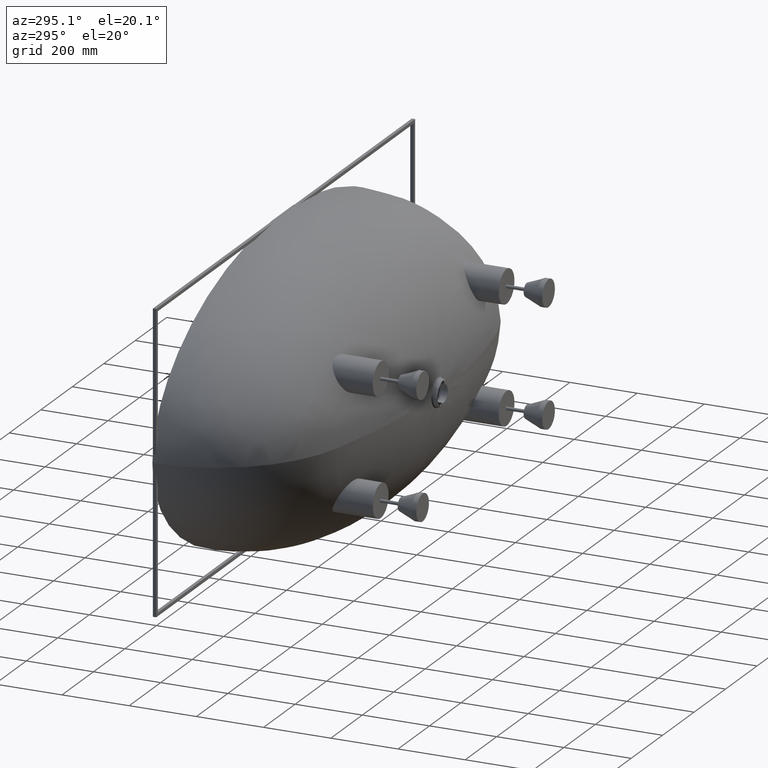
[diagram: clean part render]
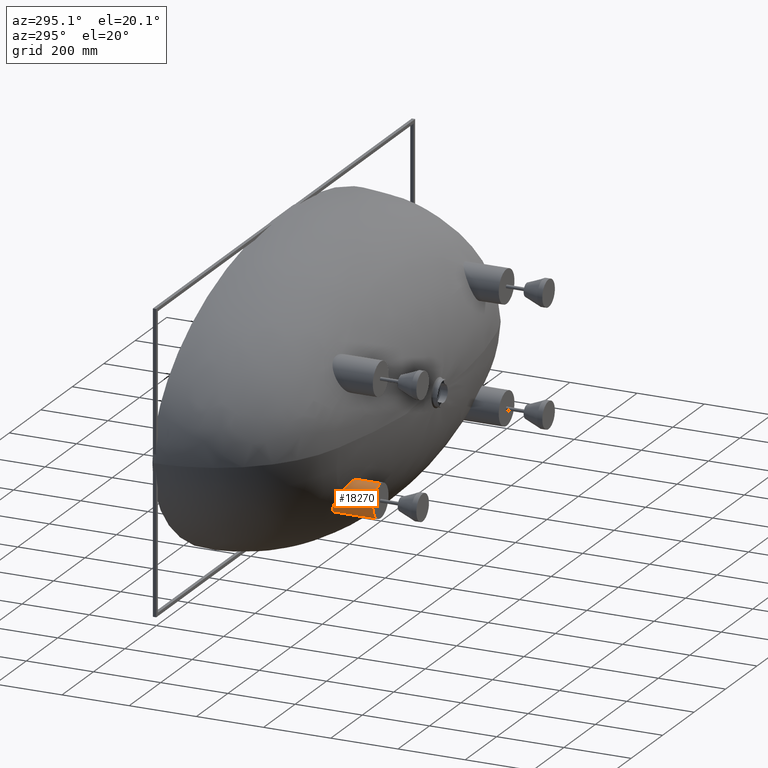
[diagram: same view with one face highlighted and labeled with its STEP entity id]
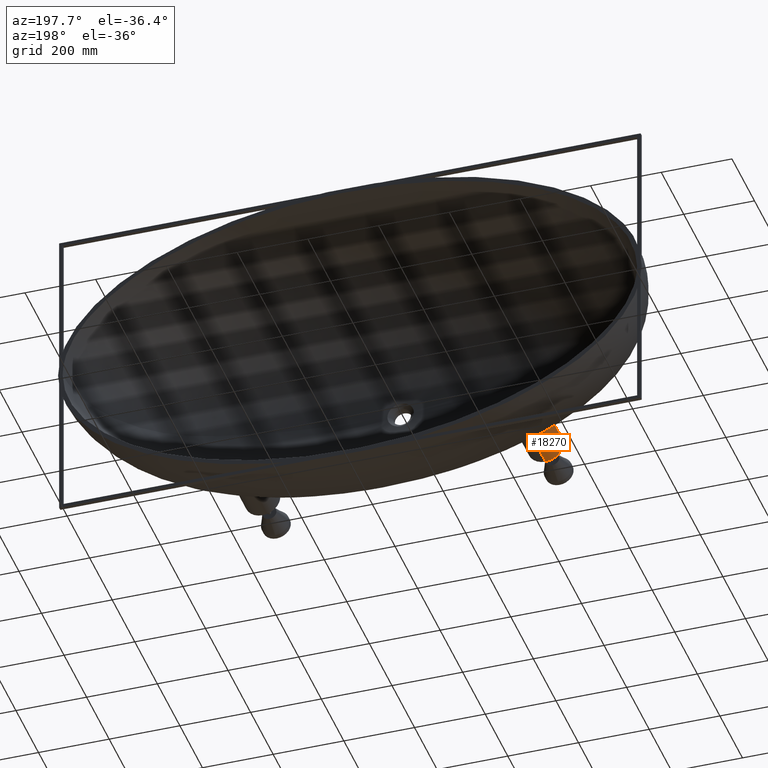
[diagram: same view with one face highlighted and labeled with its STEP entity id]
A machine part, auxiliary view. The second image highlights one B-rep face of the part: STEP entity #18270.
A second angle (auxiliary view) of the same face is appended — the face is thin or edge-on in the first view.
In plain terms, the highlighted cylindrical surface (edge-blend (fillet) strip) has radius 50 mm, axis along (-0, -1, -0).
Its self-contained STEP definition (entity closure, byte-faithful):
#553 = EDGE_CURVE ( 'NONE', #2644, #13024, #7185, .T. ) ;
#674 = AXIS2_PLACEMENT_3D ( 'NONE', #4965, #4788, #18412 ) ;
#2594 = EDGE_CURVE ( 'NONE', #2644, #5080, #8498, .T. ) ;
#2644 = VERTEX_POINT ( 'NONE', #3575 ) ;
#3140 = DIRECTION ( 'NONE',  ( 0.0000000000000000000, 1.000000000000000000, 0.0000000000000000000 ) ) ;
#3575 = CARTESIAN_POINT ( 'NONE',  ( -399.9999999999879500, -404.7099913692913400, -125.0000000000001700 ) ) ;
#3607 = FACE_OUTER_BOUND ( 'NONE', #15200, .T. ) ;
#3818 = CARTESIAN_POINT ( 'NONE',  ( -400.0000000000000000, -353.4300241764696000, -225.0000000000000900 ) ) ;
#4116 = CARTESIAN_POINT ( 'NONE',  ( -400.4269561940901100, -353.3100555326082000, -225.0000000000000900 ) ) ;
#4200 = CARTESIAN_POINT ( 'NONE',  ( -400.8565451386315300, -353.1928133813205500, -224.9945030136292400 ) ) ;
#4283 = CARTESIAN_POINT ( 'NONE',  ( -401.7141687293549800, -352.9658088401041000, -224.9724486764616500 ) ) ;
#4295 = CIRCLE ( 'NONE', #11215, 50.00000000000007100 ) ;
#4620 = CARTESIAN_POINT ( 'NONE',  ( -402.1433432012290200, -352.8557261548541000, -224.9558913499291200 ) ) ;
#4709 = CARTESIAN_POINT ( 'NONE',  ( -403.4319847412437500, -352.5359125772091000, -224.8894927145238400 ) ) ;
#4788 = DIRECTION ( 'NONE',  ( -0.0000000000000000000, -1.000000000000000000, -0.0000000000000000000 ) ) ;
#4804 = CARTESIAN_POINT ( 'NONE',  ( -404.2925693879360600, -352.3366093522678900, -224.8229380435985800 ) ) ;
#4895 = CARTESIAN_POINT ( 'NONE',  ( -406.8790530633772300, -351.7820555264638100, -224.5548570569760000 ) ) ;
#4965 = CARTESIAN_POINT ( 'NONE',  ( -399.9999999999999400, 500000.0000000000600, -175.0000000000000000 ) ) ;
#4981 = CARTESIAN_POINT ( 'NONE',  ( -408.6166419663362000, -351.4695779896289300, -224.2828718432774900 ) ) ;
#5066 = CARTESIAN_POINT ( 'NONE',  ( -413.7412943421390400, -350.7349867737845000, -223.2013353901156700 ) ) ;
#5080 = VERTEX_POINT ( 'NONE', #10640 ) ;
#5156 = CARTESIAN_POINT ( 'NONE',  ( -417.0710624575656900, -350.5058104820719200, -222.1290297338233300 ) ) ;
#5236 = CARTESIAN_POINT ( 'NONE',  ( -421.1201886488780100, -350.5640725773483800, -220.3290529903661900 ) ) ;
#5321 = CARTESIAN_POINT ( 'NONE',  ( -421.9251233311265400, -350.5933054444686800, -219.9451603265330000 ) ) ;
#5351 = CARTESIAN_POINT ( 'NONE',  ( -423.4972008498126600, -350.6853068735252400, -219.1436294620913800 ) ) ;
#5407 = CARTESIAN_POINT ( 'NONE',  ( -424.2677242493365400, -350.7480600746116000, -218.7245825935307600 ) ) ;
#5440 = CARTESIAN_POINT ( 'NONE',  ( -426.5342994645377500, -350.9846140361441400, -217.4143514014713800 ) ) ;
#5490 = CARTESIAN_POINT ( 'NONE',  ( -439.3576962092934700, -388.1361153565841300, -144.1519916381066900 ) ) ;
#5524 = CARTESIAN_POINT ( 'NONE',  ( -427.9854800715406200, -351.2066043629634500, -216.4702297280376500 ) ) ;
#5580 = VERTEX_POINT ( 'NONE', #10280 ) ;
#5598 = CARTESIAN_POINT ( 'NONE',  ( -430.7730634783301900, -351.7715397669430800, -214.4459834798103700 ) ) ;
#5769 = CARTESIAN_POINT ( 'NONE',  ( -432.1094530457406200, -352.1145005052566700, -213.3658436656703000 ) ) ;
#5845 = CARTESIAN_POINT ( 'NONE',  ( -434.0287735280659800, -352.7163661741503200, -211.6439804871745600 ) ) ;
#5858 = VECTOR ( 'NONE', #11145, 1000.000000000000000 ) ;
#6004 = CARTESIAN_POINT ( 'NONE',  ( -434.6564352117096600, -352.9324292937936900, -211.0508561438305400 ) ) ;
#6083 = CARTESIAN_POINT ( 'NONE',  ( -435.8701409302673300, -353.3884202612425200, -209.8434458676140400 ) ) ;
#6162 = CARTESIAN_POINT ( 'NONE',  ( -436.4564207184473600, -353.6282408280678200, -209.2292316135191800 ) ) ;
#6242 = CARTESIAN_POINT ( 'NONE',  ( -439.2898315629495300, -354.8825340710790200, -206.1076143571450500 ) ) ;
#6276 = EDGE_CURVE ( 'NONE', #5580, #13024, #4295, .T. ) ;
#6334 = CARTESIAN_POINT ( 'NONE',  ( -441.2464909683475900, -356.0606292493912400, -203.4503830530517800 ) ) ;
#6507 = CARTESIAN_POINT ( 'NONE',  ( -443.3432046832159000, -357.7111816613750600, -199.9406333090312300 ) ) ;
#6602 = CARTESIAN_POINT ( 'NONE',  ( -443.7455110102099500, -358.0508742413824700, -199.2279809757178000 ) ) ;
#6689 = CARTESIAN_POINT ( 'NONE',  ( -444.5122130879461200, -358.7451511543093800, -197.7887621804571300 ) ) ;
#6879 = CARTESIAN_POINT ( 'NONE',  ( -444.8748238367210800, -359.0980235225891300, -197.0657078215049300 ) ) ;
#7140 = CARTESIAN_POINT ( 'NONE',  ( -445.9033211412718700, -360.1723512739998800, -194.8863323004629500 ) ) ;
#7185 = LINE ( 'NONE', #13042, #14543 ) ;
#7225 = CARTESIAN_POINT ( 'NONE',  ( -446.5100514793460900, -360.9094555793705000, -193.4198220404849500 ) ) ;
#7257 = CARTESIAN_POINT ( 'NONE',  ( -448.1089533960283700, -363.1741864272281100, -188.9795398206447300 ) ) ;
#7259 = ORIENTED_EDGE ( 'NONE', *, *, #553, .F. ) ;
#7314 = CARTESIAN_POINT ( 'NONE',  ( -448.8819176887152500, -364.7546192297761000, -185.9653436087723700 ) ) ;
#7345 = CARTESIAN_POINT ( 'NONE',  ( -449.4958679071333400, -366.7999728128401100, -182.1248929785776900 ) ) ;
#7397 = CARTESIAN_POINT ( 'NONE',  ( -449.6008733097512500, -367.2125851823593600, -181.3531408386960200 ) ) ;
#7428 = CARTESIAN_POINT ( 'NONE',  ( -449.7749849511217800, -368.0446255315729300, -179.8020729609097300 ) ) ;
#7505 = CARTESIAN_POINT ( 'NONE',  ( -449.8437851937574100, -368.4629709275561700, -179.0247849427335300 ) ) ;
#7581 = CARTESIAN_POINT ( 'NONE',  ( -449.9950906156396400, -369.7163945417129900, -176.7024040180507700 ) ) ;
#7731 = CARTESIAN_POINT ( 'NONE',  ( -450.0233368526357400, -370.5530392601660900, -175.1608113189517200 ) ) ;
#7817 = CARTESIAN_POINT ( 'NONE',  ( -449.8966078529929300, -373.0629477563435300, -170.5537785283635500 ) ) ;
#7893 = ORIENTED_EDGE ( 'NONE', *, *, #2594, .T. ) ;
#7895 = CARTESIAN_POINT ( 'NONE',  ( -449.5320574225924000, -374.7360132816108900, -167.5058305094896700 ) ) ;
#8050 = CARTESIAN_POINT ( 'NONE',  ( -448.7176301760518400, -376.8201094444223100, -163.7220695345436600 ) ) ;
#8131 = CARTESIAN_POINT ( 'NONE',  ( -448.5366030853388100, -377.2362674312101400, -162.9664796190387200 ) ) ;
#8213 = CARTESIAN_POINT ( 'NONE',  ( -448.1379598695510300, -378.0707056325793500, -161.4595320826705100 ) ) ;
#8299 = CARTESIAN_POINT ( 'NONE',  ( -447.9204521651370200, -378.4882572828248000, -160.7088966717765600 ) ) ;
#8382 = CARTESIAN_POINT ( 'NONE',  ( -447.2186544554454600, -379.7325034872440600, -158.4827317145424400 ) ) ;
#8471 = CARTESIAN_POINT ( 'NONE',  ( -446.6835602889935900, -380.5543362457989400, -157.0264811982949300 ) ) ;
#8498 = B_SPLINE_CURVE_WITH_KNOTS ( 'NONE', 3,
 ( #11219, #10775, #10869, #10502, #10319, #10236, #10148, #10073, #9996, #9904, #9585, #9506, #9430, #9343, #9310, #9255, #9224, #9149, #9067, #5490, #8987, #8906, #8817, #8734, #8644, #8471, #8382, #8299, #8213, #8131, #8050, #7895, #7817, #7731, #7581, #7505, #7428, #7397, #7345, #7314, #7257, #7225, #7140, #6879, #6689, #6602, #6507, #6334, #6242, #6162, #6083, #6004, #5845, #5769, #5598, #5524, #5440, #5407, #5351, #5321, #5236, #5156, #5066, #4981, #4895, #4804, #4709, #4620, #4283, #4200, #4116, #3818 ),
 .UNSPECIFIED., .F., .F.,
 ( 4, 2, 2, 2, 2, 2, 2, 2, 2, 2, 2, 2, 2, 2, 2, 2, 2, 2, 2, 2, 2, 2, 2, 2, 2, 2, 2, 2, 2, 2, 2, 2, 2, 2, 2, 4 ),
 ( 0.1687470263703143000, 0.1792164481943776500, 0.1818338036503935100, 0.1844511591064093600, 0.1896858700184412500, 0.2001552918425050800, 0.2027726472985209600, 0.2053900027545368400, 0.2106247136665686200, 0.2158594245786003800, 0.2184767800346162900, 0.2210941354906322300, 0.2315635573146962400, 0.2367982682267281700, 0.2394156236827441600, 0.2420329791387601000, 0.2525024009628238900, 0.2577371118748557600, 0.2603544673308716400, 0.2629718227868875800, 0.2734412446109512600, 0.2786759555229831300, 0.2812933109789990700, 0.2839106664350149500, 0.2943800882590785800, 0.2969974437150944000, 0.2996147991711102200, 0.3048495100831419800, 0.3100842209951736300, 0.3127015764511894600, 0.3153189319072051700, 0.3257883537312684700, 0.3310230646433000000, 0.3336404200993158300, 0.3349490978273238500, 0.3362577755553318200 ),
 .UNSPECIFIED. ) ;
#8644 = CARTESIAN_POINT ( 'NONE',  ( -444.8792975052408600, -382.9987782692557500, -152.7411282199346700 ) ) ;
#8734 = CARTESIAN_POINT ( 'NONE',  ( -443.4127849768859200, -384.6003155627858500, -149.9946292826493300 ) ) ;
#8817 = CARTESIAN_POINT ( 'NONE',  ( -441.2349580811258500, -386.5734821478132500, -146.7104367998038900 ) ) ;
#8906 = CARTESIAN_POINT ( 'NONE',  ( -440.7811997286060000, -386.9673611158821100, -146.0599935700839800 ) ) ;
#8987 = CARTESIAN_POINT ( 'NONE',  ( -439.8418958395807300, -387.7492067492513000, -144.7799146365194400 ) ) ;
#9067 = CARTESIAN_POINT ( 'NONE',  ( -437.8618118193979900, -389.2852654486300100, -142.3045157713428400 ) ) ;
#9149 = CARTESIAN_POINT ( 'NONE',  ( -436.8069285310545000, -390.0359495678110900, -141.1211799005431300 ) ) ;
#9224 = CARTESIAN_POINT ( 'NONE',  ( -434.5817096625123100, -391.5085089070752200, -138.8526654365883000 ) ) ;
#9255 = CARTESIAN_POINT ( 'NONE',  ( -433.4113825089039000, -392.2303830318232900, -137.7674775815722800 ) ) ;
#9310 = CARTESIAN_POINT ( 'NONE',  ( -431.5669936511359900, -393.2926730725433200, -136.2163666796431000 ) ) ;
#9343 = CARTESIAN_POINT ( 'NONE',  ( -430.9373577673618500, -393.6433452119644000, -135.7121289049928800 ) ) ;
#9430 = CARTESIAN_POINT ( 'NONE',  ( -429.6477149172029600, -394.3379681214157700, -134.7300369879496000 ) ) ;
#9506 = CARTESIAN_POINT ( 'NONE',  ( -428.9863798203063000, -394.6825834677117700, -134.2512810029225000 ) ) ;
#9585 = CARTESIAN_POINT ( 'NONE',  ( -425.6173068367170300, -396.3811504926744600, -131.9367136615031800 ) ) ;
#9904 = CARTESIAN_POINT ( 'NONE',  ( -422.7532632844790300, -397.6483435739897900, -130.3548061991195700 ) ) ;
#9996 = CARTESIAN_POINT ( 'NONE',  ( -418.2014724951303600, -399.4228071323015600, -128.4013682721070800 ) ) ;
#10073 = CARTESIAN_POINT ( 'NONE',  ( -416.6413120164409600, -399.9930822453046600, -127.8205599307221700 ) ) ;
#10148 = CARTESIAN_POINT ( 'NONE',  ( -414.2335214653581400, -400.8165319307837500, -127.0613405025237600 ) ) ;
#10236 = CARTESIAN_POINT ( 'NONE',  ( -413.4204693235291200, -401.0853354848427400, -126.8273745364753600 ) ) ;
#10280 = CARTESIAN_POINT ( 'NONE',  ( -399.9999999999999400, -480.0000000000000000, -225.0000000000000600 ) ) ;
#10319 = CARTESIAN_POINT ( 'NONE',  ( -411.7887011894021000, -401.6067310493359100, -126.4022905356661500 ) ) ;
#10502 = CARTESIAN_POINT ( 'NONE',  ( -410.9679350051409900, -401.8600347824713600, -126.2105001409827600 ) ) ;
#10640 = CARTESIAN_POINT ( 'NONE',  ( -400.0000000000000000, -353.4300241764696000, -225.0000000000000900 ) ) ;
#10775 = CARTESIAN_POINT ( 'NONE',  ( -403.4606299451259600, -403.9593540224757400, -124.9999999999991000 ) ) ;
#10791 = EDGE_CURVE ( 'NONE', #5080, #5580, #16233, .T. ) ;
#10869 = CARTESIAN_POINT ( 'NONE',  ( -406.8398487774424600, -403.0901807774163800, -125.3553549209773800 ) ) ;
#11145 = DIRECTION ( 'NONE',  ( -0.0000000000000000000, -1.000000000000000000, -0.0000000000000000000 ) ) ;
#11215 = AXIS2_PLACEMENT_3D ( 'NONE', #11560, #3140, #17866 ) ;
#11219 = CARTESIAN_POINT ( 'NONE',  ( -399.9999999999879500, -404.7099913692913400, -125.0000000000001700 ) ) ;
#11560 = CARTESIAN_POINT ( 'NONE',  ( -399.9999999999999400, -480.0000000000000000, -175.0000000000000000 ) ) ;
#11746 = CARTESIAN_POINT ( 'NONE',  ( -399.9999999999999400, 500000.0000000000600, -225.0000000000000600 ) ) ;
#13024 = VERTEX_POINT ( 'NONE', #13177 ) ;
#13042 = CARTESIAN_POINT ( 'NONE',  ( -399.9999999999999400, 500000.0000000000600, -124.9999999999999100 ) ) ;
#13177 = CARTESIAN_POINT ( 'NONE',  ( -399.9999999999999400, -480.0000000000000000, -124.9999999999999100 ) ) ;
#14543 = VECTOR ( 'NONE', #23255, 1000.000000000000000 ) ;
#14809 = CYLINDRICAL_SURFACE ( 'NONE', #674, 50.00000000000007100 ) ;
#15200 = EDGE_LOOP ( 'NONE', ( #7259, #7893, #20186, #20547 ) ) ;
#16233 = LINE ( 'NONE', #11746, #5858 ) ;
#17866 = DIRECTION ( 'NONE',  ( 0.0000000000000000000, 0.0000000000000000000, 1.000000000000000000 ) ) ;
#18270 = ADVANCED_FACE ( 'NONE', ( #3607 ), #14809, .T. ) ;
#18412 = DIRECTION ( 'NONE',  ( 0.0000000000000000000, 0.0000000000000000000, -1.000000000000000000 ) ) ;
#20186 = ORIENTED_EDGE ( 'NONE', *, *, #10791, .T. ) ;
#20547 = ORIENTED_EDGE ( 'NONE', *, *, #6276, .T. ) ;
#23255 = DIRECTION ( 'NONE',  ( -0.0000000000000000000, -1.000000000000000000, -0.0000000000000000000 ) ) ;